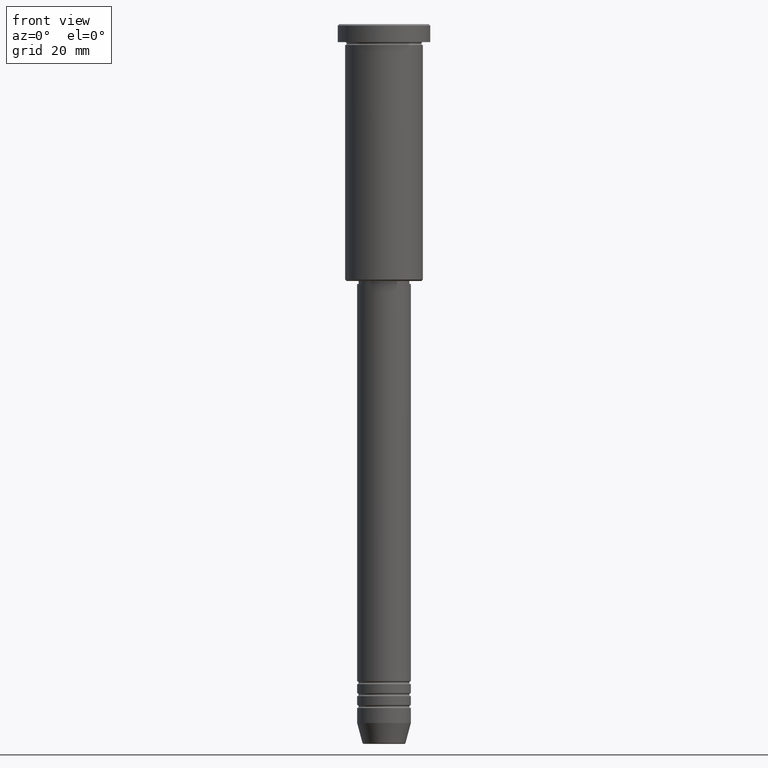
[diagram: clean part render]
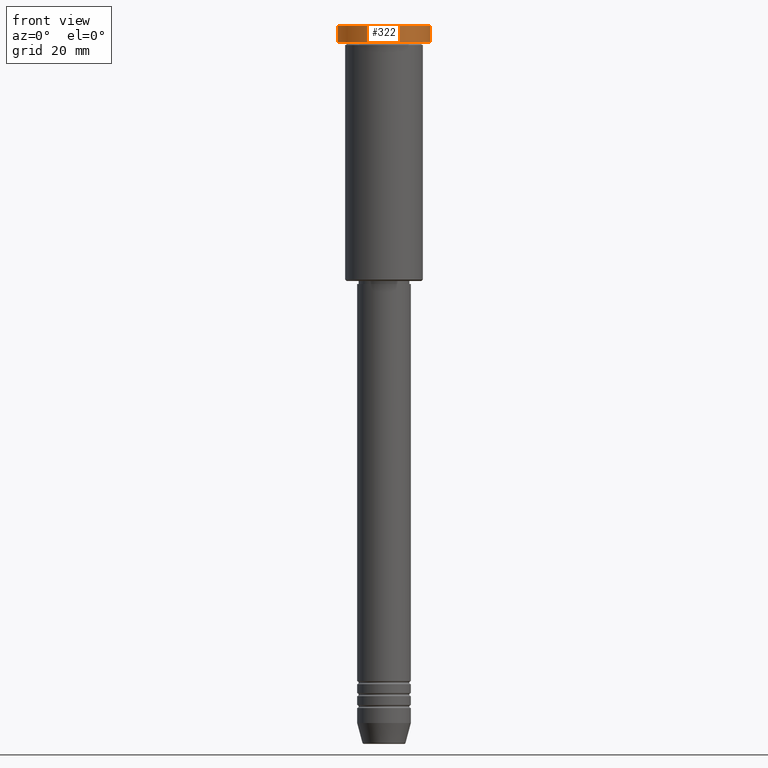
[diagram: same view with one face highlighted and labeled with its STEP entity id]
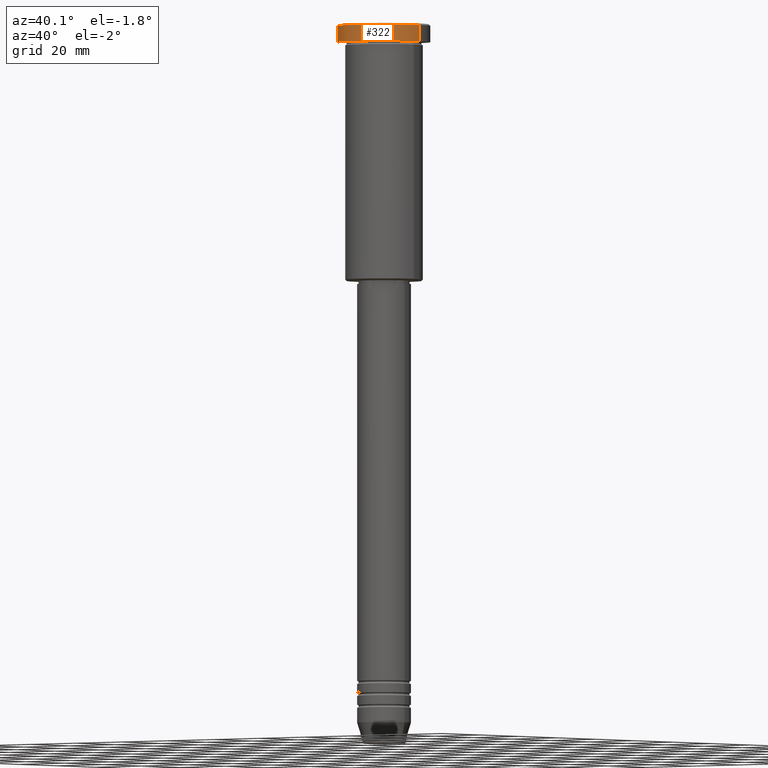
[diagram: same view with one face highlighted and labeled with its STEP entity id]
A machine part, front view. The second image highlights one B-rep face of the part: STEP entity #322.
A second angle (auxiliary view) of the same face is appended — the face is thin or edge-on in the first view.
In plain terms, the highlighted cylindrical surface (partial cylindrical patch) has radius 15.5 mm, axis along (-0, -0, 1).
Its self-contained STEP definition (entity closure, byte-faithful):
#13 = CARTESIAN_POINT ( 'NONE',  ( 0.000000000000000000, 0.000000000000000000, -5.999999999999995559 ) ) ;
#54 = LINE ( 'NONE', #225, #462 ) ;
#140 = VECTOR ( 'NONE', #1062, 1000.000000000000000 ) ;
#160 = CARTESIAN_POINT ( 'NONE',  ( 0.000000000000000000, 0.000000000000000000, 0.000000000000000000 ) ) ;
#193 = CIRCLE ( 'NONE', #1099, 15.50000000000000000 ) ;
#225 = CARTESIAN_POINT ( 'NONE',  ( -15.50000000000000000, 1.898202538678397557E-15, 0.000000000000000000 ) ) ;
#265 = ORIENTED_EDGE ( 'NONE', *, *, #1074, .F. ) ;
#268 = CARTESIAN_POINT ( 'NONE',  ( 0.000000000000000000, 0.000000000000000000, -0.5000000000000125455 ) ) ;
#316 = DIRECTION ( 'NONE',  ( 1.000000000000000000, 0.000000000000000000, 0.000000000000000000 ) ) ;
#322 = ADVANCED_FACE ( 'NONE', ( #616 ), #978, .T. ) ;
#350 = DIRECTION ( 'NONE',  ( 0.000000000000000000, 0.000000000000000000, -1.000000000000000000 ) ) ;
#361 = DIRECTION ( 'NONE',  ( 1.000000000000000000, 0.000000000000000000, 0.000000000000000000 ) ) ;
#370 = CARTESIAN_POINT ( 'NONE',  ( -15.50000000000000000, 1.898202538678397557E-15, -5.999999999999995559 ) ) ;
#400 = AXIS2_PLACEMENT_3D ( 'NONE', #13, #652, #1029 ) ;
#462 = VECTOR ( 'NONE', #1047, 1000.000000000000000 ) ;
#497 = CIRCLE ( 'NONE', #400, 15.50000000000000000 ) ;
#532 = ORIENTED_EDGE ( 'NONE', *, *, #799, .T. ) ;
#552 = EDGE_CURVE ( 'NONE', #754, #884, #497, .T. ) ;
#592 = VERTEX_POINT ( 'NONE', #874 ) ;
#594 = DIRECTION ( 'NONE',  ( -0.000000000000000000, -0.000000000000000000, 1.000000000000000000 ) ) ;
#616 = FACE_OUTER_BOUND ( 'NONE', #682, .T. ) ;
#652 = DIRECTION ( 'NONE',  ( -0.000000000000000000, -0.000000000000000000, 1.000000000000000000 ) ) ;
#682 = EDGE_LOOP ( 'NONE', ( #265, #1079, #1061, #532 ) ) ;
#683 = LINE ( 'NONE', #876, #140 ) ;
#754 = VERTEX_POINT ( 'NONE', #370 ) ;
#799 = EDGE_CURVE ( 'NONE', #592, #851, #193, .T. ) ;
#851 = VERTEX_POINT ( 'NONE', #916 ) ;
#852 = CARTESIAN_POINT ( 'NONE',  ( 15.50000000000000000, 0.000000000000000000, -5.999999999999995559 ) ) ;
#874 = CARTESIAN_POINT ( 'NONE',  ( 15.50000000000000000, 0.000000000000000000, -0.5000000000000125455 ) ) ;
#876 = CARTESIAN_POINT ( 'NONE',  ( 15.50000000000000000, 0.000000000000000000, 0.000000000000000000 ) ) ;
#884 = VERTEX_POINT ( 'NONE', #852 ) ;
#916 = CARTESIAN_POINT ( 'NONE',  ( -15.50000000000000000, 1.898202538678397557E-15, -0.5000000000000125455 ) ) ;
#978 = CYLINDRICAL_SURFACE ( 'NONE', #1146, 15.50000000000000000 ) ;
#1029 = DIRECTION ( 'NONE',  ( 1.000000000000000000, 0.000000000000000000, 0.000000000000000000 ) ) ;
#1047 = DIRECTION ( 'NONE',  ( -0.000000000000000000, -0.000000000000000000, 1.000000000000000000 ) ) ;
#1061 = ORIENTED_EDGE ( 'NONE', *, *, #1155, .T. ) ;
#1062 = DIRECTION ( 'NONE',  ( -0.000000000000000000, -0.000000000000000000, 1.000000000000000000 ) ) ;
#1074 = EDGE_CURVE ( 'NONE', #754, #851, #54, .T. ) ;
#1079 = ORIENTED_EDGE ( 'NONE', *, *, #552, .T. ) ;
#1099 = AXIS2_PLACEMENT_3D ( 'NONE', #268, #350, #361 ) ;
#1146 = AXIS2_PLACEMENT_3D ( 'NONE', #160, #594, #316 ) ;
#1155 = EDGE_CURVE ( 'NONE', #884, #592, #683, .T. ) ;